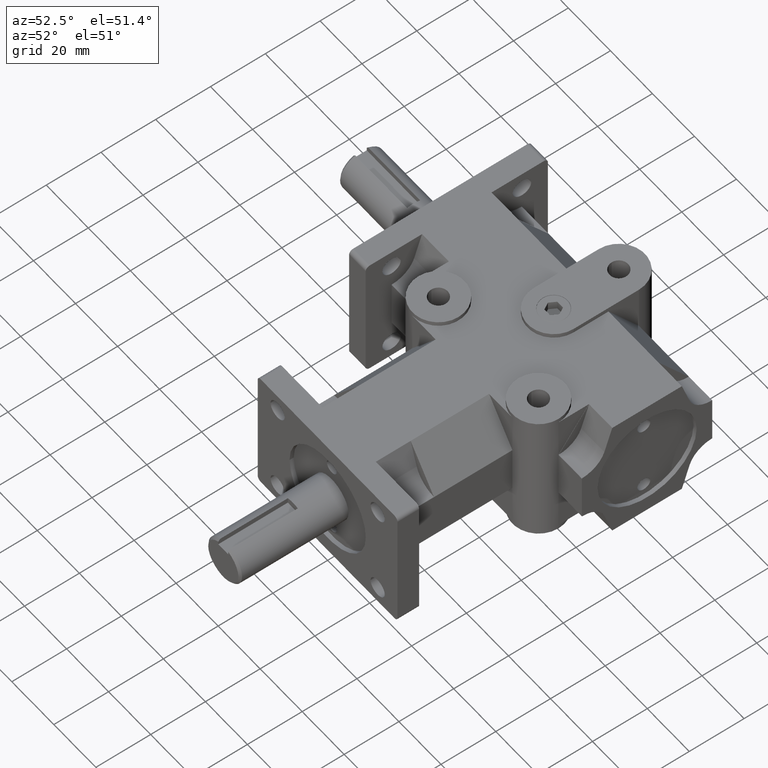
[diagram: clean part render]
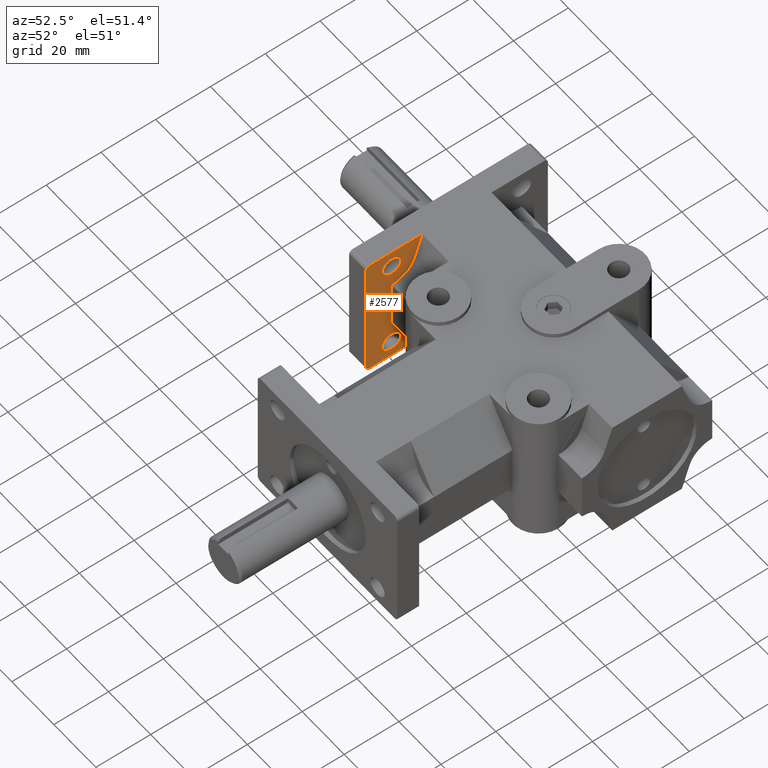
[diagram: same view with one face highlighted and labeled with its STEP entity id]
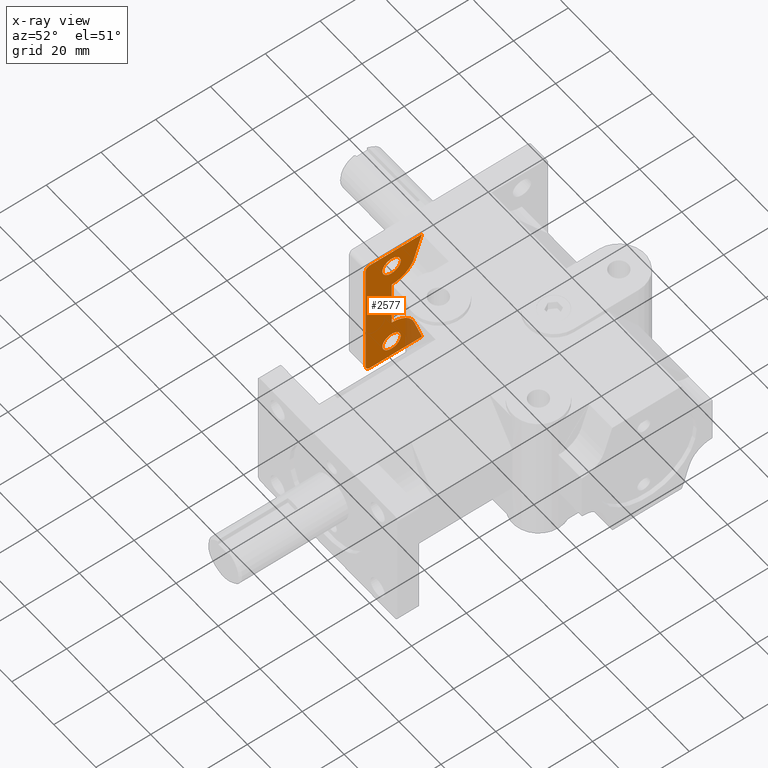
[diagram: x-ray of the same camera — body ghosted, the highlighted face saturated]
A machine part, auxiliary view. The second image highlights one B-rep face of the part: STEP entity #2577.
The next image is the same camera in x-ray: the body ghosted, the highlighted face saturated — about 8% of this face is hidden behind the body in this view.
In plain terms, the highlighted planar face has unit normal (1, 0, 0).
Its self-contained STEP definition (entity closure, byte-faithful):
#35=FACE_BOUND('',#348,.T.);
#36=FACE_BOUND('',#349,.T.);
#67=PLANE('',#2781);
#184=FACE_OUTER_BOUND('',#347,.T.);
#347=EDGE_LOOP('',(#1847,#1848,#1849,#1850,#1851,#1852,#1853,#1854,#1855,
#1856,#1857,#1858));
#348=EDGE_LOOP('',(#1859));
#349=EDGE_LOOP('',(#1860));
#521=LINE('',#3910,#786);
#522=LINE('',#3912,#787);
#523=LINE('',#3916,#788);
#524=LINE('',#3918,#789);
#525=LINE('',#3920,#790);
#526=LINE('',#3924,#791);
#527=LINE('',#3925,#792);
#528=LINE('',#3926,#793);
#786=VECTOR('',#3139,1.);
#787=VECTOR('',#3140,1.);
#788=VECTOR('',#3143,1.);
#789=VECTOR('',#3144,1.);
#790=VECTOR('',#3145,1.);
#791=VECTOR('',#3148,0.999999999999999);
#792=VECTOR('',#3149,1.);
#793=VECTOR('',#3150,1.);
#1047=CIRCLE('',#2760,0.06);
#1049=CIRCLE('',#2763,0.06);
#1062=CIRCLE('',#2782,0.34);
#1063=CIRCLE('',#2783,0.34);
#1064=CIRCLE('',#2784,0.1325);
#1065=CIRCLE('',#2785,0.1325);
#1160=VERTEX_POINT('',#3845);
#1161=VERTEX_POINT('',#3847);
#1164=VERTEX_POINT('',#3854);
#1165=VERTEX_POINT('',#3856);
#1186=VERTEX_POINT('',#3909);
#1187=VERTEX_POINT('',#3911);
#1188=VERTEX_POINT('',#3913);
#1189=VERTEX_POINT('',#3915);
#1190=VERTEX_POINT('',#3917);
#1191=VERTEX_POINT('',#3919);
#1192=VERTEX_POINT('',#3921);
#1193=VERTEX_POINT('',#3923);
#1194=VERTEX_POINT('',#3927);
#1195=VERTEX_POINT('',#3929);
#1411=EDGE_CURVE('',#1160,#1161,#1047,.T.);
#1415=EDGE_CURVE('',#1164,#1165,#1049,.T.);
#1441=EDGE_CURVE('',#1160,#1186,#521,.T.);
#1442=EDGE_CURVE('',#1186,#1187,#522,.T.);
#1443=EDGE_CURVE('',#1187,#1188,#1062,.T.);
#1444=EDGE_CURVE('',#1189,#1188,#523,.F.);
#1445=EDGE_CURVE('',#1190,#1189,#524,.T.);
#1446=EDGE_CURVE('',#1191,#1190,#525,.F.);
#1447=EDGE_CURVE('',#1192,#1191,#1063,.T.);
#1448=EDGE_CURVE('',#1193,#1192,#526,.T.);
#1449=EDGE_CURVE('',#1193,#1165,#527,.T.);
#1450=EDGE_CURVE('',#1164,#1161,#528,.T.);
#1451=EDGE_CURVE('',#1194,#1194,#1064,.T.);
#1452=EDGE_CURVE('',#1195,#1195,#1065,.T.);
#1847=ORIENTED_EDGE('',*,*,#1411,.F.);
#1848=ORIENTED_EDGE('',*,*,#1441,.T.);
#1849=ORIENTED_EDGE('',*,*,#1442,.T.);
#1850=ORIENTED_EDGE('',*,*,#1443,.T.);
#1851=ORIENTED_EDGE('',*,*,#1444,.F.);
#1852=ORIENTED_EDGE('',*,*,#1445,.F.);
#1853=ORIENTED_EDGE('',*,*,#1446,.F.);
#1854=ORIENTED_EDGE('',*,*,#1447,.F.);
#1855=ORIENTED_EDGE('',*,*,#1448,.F.);
#1856=ORIENTED_EDGE('',*,*,#1449,.T.);
#1857=ORIENTED_EDGE('',*,*,#1415,.F.);
#1858=ORIENTED_EDGE('',*,*,#1450,.T.);
#1859=ORIENTED_EDGE('',*,*,#1451,.T.);
#1860=ORIENTED_EDGE('',*,*,#1452,.T.);
#2577=ADVANCED_FACE('',(#184,#35,#36),#67,.T.);
#2760=AXIS2_PLACEMENT_3D('',#3848,#3080,#3081);
#2763=AXIS2_PLACEMENT_3D('',#3857,#3088,#3089);
#2781=AXIS2_PLACEMENT_3D('',#3908,#3137,#3138);
#2782=AXIS2_PLACEMENT_3D('',#3914,#3141,#3142);
#2783=AXIS2_PLACEMENT_3D('',#3922,#3146,#3147);
#2784=AXIS2_PLACEMENT_3D('',#3928,#3151,#3152);
#2785=AXIS2_PLACEMENT_3D('',#3930,#3153,#3154);
#3080=DIRECTION('center_axis',(-1.,0.,0.));
#3081=DIRECTION('ref_axis',(0.,-0.707106781186545,-0.70710678118655));
#3088=DIRECTION('center_axis',(-1.,0.,0.));
#3089=DIRECTION('ref_axis',(0.,-0.707106781186545,0.70710678118655));
#3137=DIRECTION('center_axis',(1.,0.,0.));
#3138=DIRECTION('ref_axis',(0.,-1.,0.));
#3139=DIRECTION('',(0.,1.,0.));
#3140=DIRECTION('',(1.8738638224005E-17,-0.306035293145685,0.95202016751182));
#3141=DIRECTION('center_axis',(1.,6.12303176911189E-17,0.));
#3142=DIRECTION('ref_axis',(6.12303176911189E-17,-1.,0.));
#3143=DIRECTION('',(0.,-0.59319903804985,0.805055837353368));
#3144=DIRECTION('',(0.,0.,-1.));
#3145=DIRECTION('',(0.,0.59319903804985,0.805055837353368));
#3146=DIRECTION('center_axis',(-1.,-6.12303176911189E-17,0.));
#3147=DIRECTION('ref_axis',(6.12303176911189E-17,-1.,0.));
#3148=DIRECTION('',(1.8738638224005E-17,-0.306035293145685,-0.952020167511821));
#3149=DIRECTION('',(0.,-1.,0.));
#3150=DIRECTION('',(0.,0.,-1.));
#3151=DIRECTION('center_axis',(-1.,0.,0.));
#3152=DIRECTION('ref_axis',(0.,-1.,0.));
#3153=DIRECTION('center_axis',(-1.,0.,0.));
#3154=DIRECTION('ref_axis',(0.,-1.,0.));
#3845=CARTESIAN_POINT('',(-1.815,2.,-0.9375));
#3847=CARTESIAN_POINT('',(-1.815,1.94,-0.8775));
#3848=CARTESIAN_POINT('Origin',(-1.815,2.,-0.8775));
#3854=CARTESIAN_POINT('',(-1.815,1.94,0.8775));
#3856=CARTESIAN_POINT('',(-1.815,2.,0.9375));
#3857=CARTESIAN_POINT('Origin',(-1.815,2.,0.8775));
#3908=CARTESIAN_POINT('Origin',(-1.815,1.94,0.));
#3909=CARTESIAN_POINT('',(-1.815,2.75,-0.9375));
#3910=CARTESIAN_POINT('',(-1.815,2.17989507691196,-0.9375));
#3911=CARTESIAN_POINT('',(-1.815,2.63618685695402,-0.583448000330466));
#3912=CARTESIAN_POINT('',(-1.815,2.63618685695402,-0.583448000330467));
#3913=CARTESIAN_POINT('',(-1.815,2.31527148121518,-0.347511295934889));
#3914=CARTESIAN_POINT('Origin',(-1.815,2.3125,-0.6875));
#3915=CARTESIAN_POINT('',(-1.815,2.3125,-0.34375));
#3916=CARTESIAN_POINT('',(-1.815,2.27425605924596,-0.291847508976661));
#3917=CARTESIAN_POINT('',(-1.815,2.3125,0.34375));
#3918=CARTESIAN_POINT('',(-1.815,2.3125,0.));
#3919=CARTESIAN_POINT('',(-1.815,2.31527148121518,0.347511295934889));
#3920=CARTESIAN_POINT('',(-1.815,2.27425605924596,0.291847508976661));
#3921=CARTESIAN_POINT('',(-1.815,2.63618685695402,0.583448000330468));
#3922=CARTESIAN_POINT('Origin',(-1.815,2.3125,0.6875));
#3923=CARTESIAN_POINT('',(-1.815,2.75,0.9375));
#3924=CARTESIAN_POINT('',(-1.815,2.63618685695402,0.583448000330467));
#3925=CARTESIAN_POINT('',(-1.815,2.3125,0.9375));
#3926=CARTESIAN_POINT('',(-1.815,1.94,0.));
#3927=CARTESIAN_POINT('',(-1.815,2.445,0.6875));
#3928=CARTESIAN_POINT('Origin',(-1.815,2.3125,0.6875));
#3929=CARTESIAN_POINT('',(-1.815,2.445,-0.6875));
#3930=CARTESIAN_POINT('Origin',(-1.815,2.3125,-0.6875));